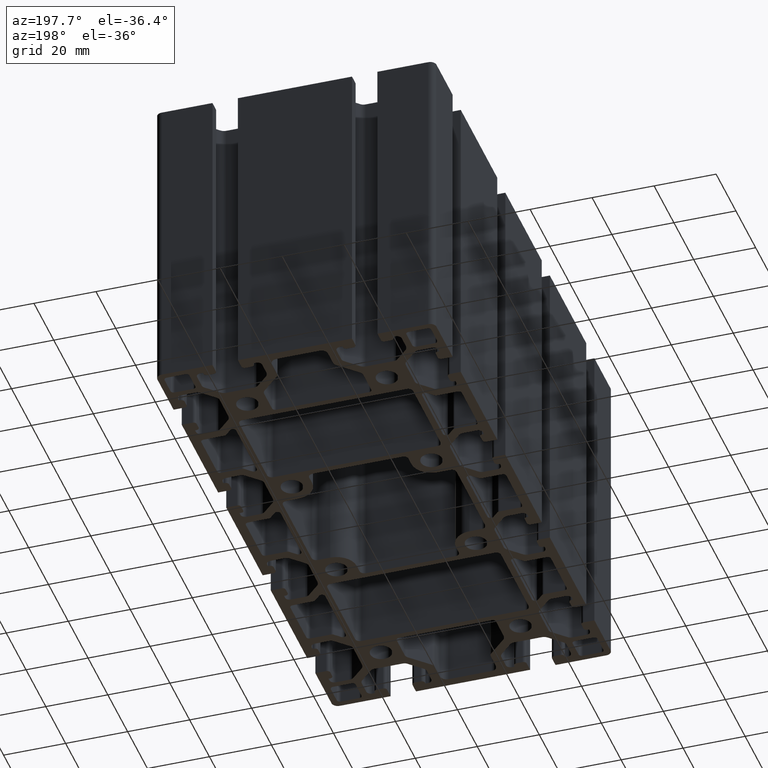
[diagram: clean part render]
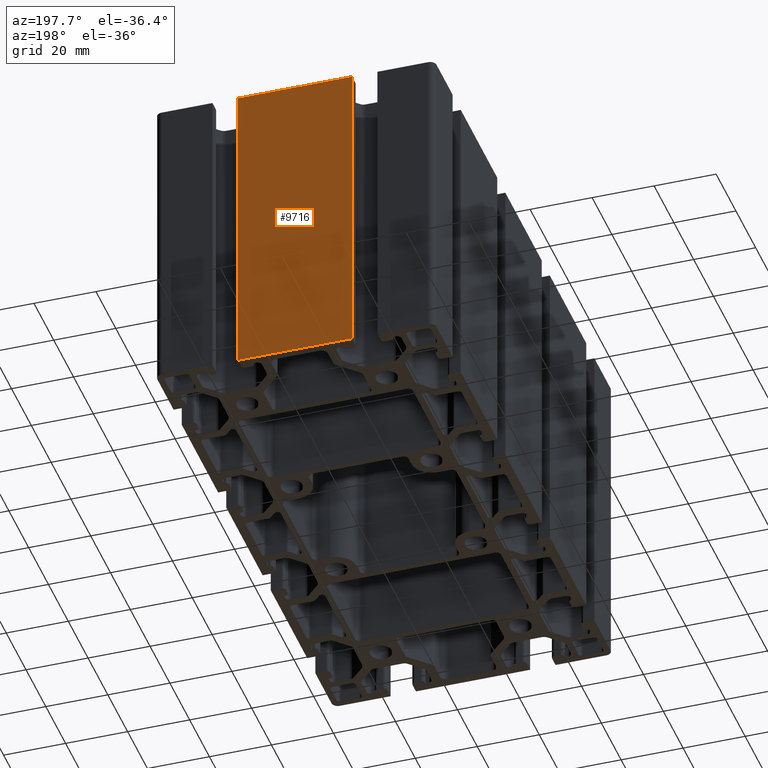
[diagram: same view with one face highlighted and labeled with its STEP entity id]
A machine part, auxiliary view. The second image highlights one B-rep face of the part: STEP entity #9716.
In plain terms, the highlighted planar face has unit normal (0, 1, 0).
Its self-contained STEP definition (entity closure, byte-faithful):
#321=PLANE('',#10630);
#798=FACE_OUTER_BOUND('',#1288,.T.);
#1288=EDGE_LOOP('',(#8017,#8018,#8019,#8020));
#2060=LINE('',#15569,#3052);
#2313=LINE('',#16293,#3305);
#2314=LINE('',#16295,#3306);
#2315=LINE('',#16296,#3307);
#3052=VECTOR('',#12696,100.);
#3305=VECTOR('',#13417,36.8);
#3306=VECTOR('',#13418,36.8);
#3307=VECTOR('',#13419,100.);
#4470=VERTEX_POINT('',#15563);
#4472=VERTEX_POINT('',#15567);
#4709=VERTEX_POINT('',#16292);
#4710=VERTEX_POINT('',#16294);
#5764=EDGE_CURVE('',#4470,#4472,#2060,.T.);
#6127=EDGE_CURVE('',#4709,#4470,#2313,.T.);
#6128=EDGE_CURVE('',#4710,#4472,#2314,.T.);
#6129=EDGE_CURVE('',#4709,#4710,#2315,.T.);
#8017=ORIENTED_EDGE('',*,*,#6127,.T.);
#8018=ORIENTED_EDGE('',*,*,#5764,.T.);
#8019=ORIENTED_EDGE('',*,*,#6128,.F.);
#8020=ORIENTED_EDGE('',*,*,#6129,.F.);
#9716=ADVANCED_FACE('',(#798),#321,.T.);
#10630=AXIS2_PLACEMENT_3D('',#16291,#13415,#13416);
#12696=DIRECTION('',(0.,0.,-1.));
#13415=DIRECTION('center_axis',(0.,1.,0.));
#13416=DIRECTION('ref_axis',(1.,0.,0.));
#13417=DIRECTION('',(1.,0.,0.));
#13418=DIRECTION('',(1.,0.,0.));
#13419=DIRECTION('',(0.,0.,-1.));
#15563=CARTESIAN_POINT('',(50.6499999999996,88.5593806572025,0.));
#15567=CARTESIAN_POINT('',(50.6499999999996,88.5593806572025,-100.));
#15569=CARTESIAN_POINT('',(50.6499999999996,88.5593806572025,0.));
#16291=CARTESIAN_POINT('Origin',(13.8500000000001,88.5593806572022,0.));
#16292=CARTESIAN_POINT('',(13.8500000000001,88.5593806572022,0.));
#16293=CARTESIAN_POINT('',(13.8500000000001,88.5593806572022,0.));
#16294=CARTESIAN_POINT('',(13.8500000000001,88.5593806572022,-100.));
#16295=CARTESIAN_POINT('',(13.8500000000001,88.5593806572022,-100.));
#16296=CARTESIAN_POINT('',(13.8500000000001,88.5593806572022,0.));